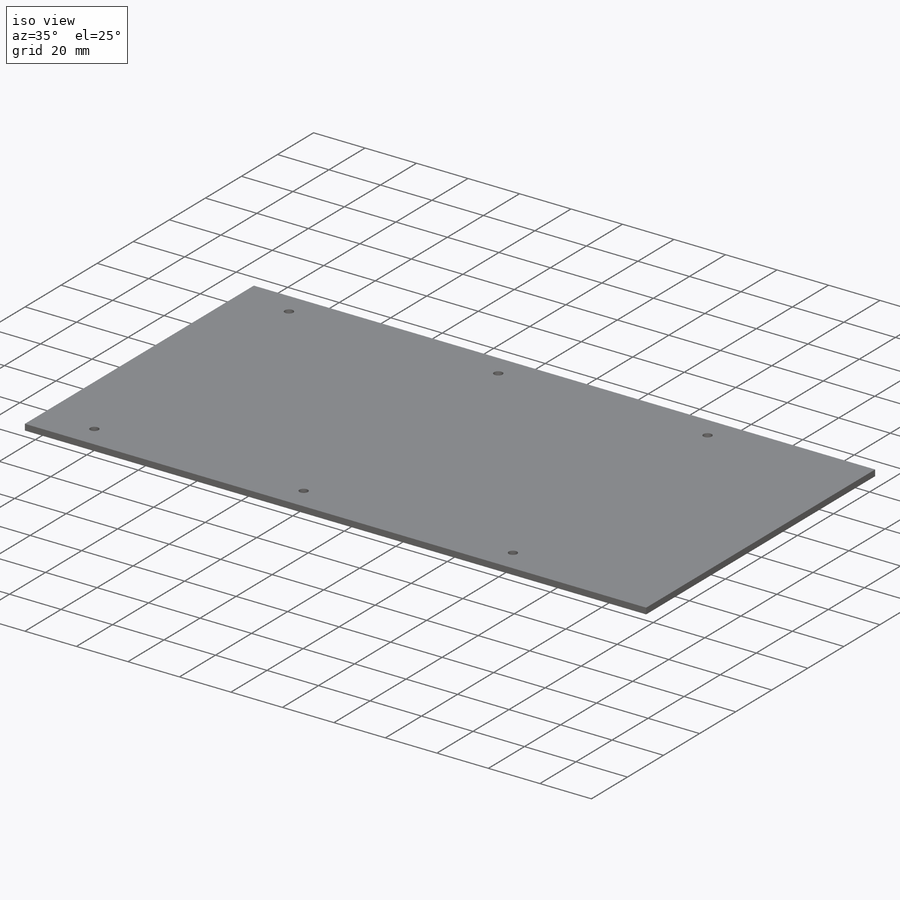
[diagram: iso view]
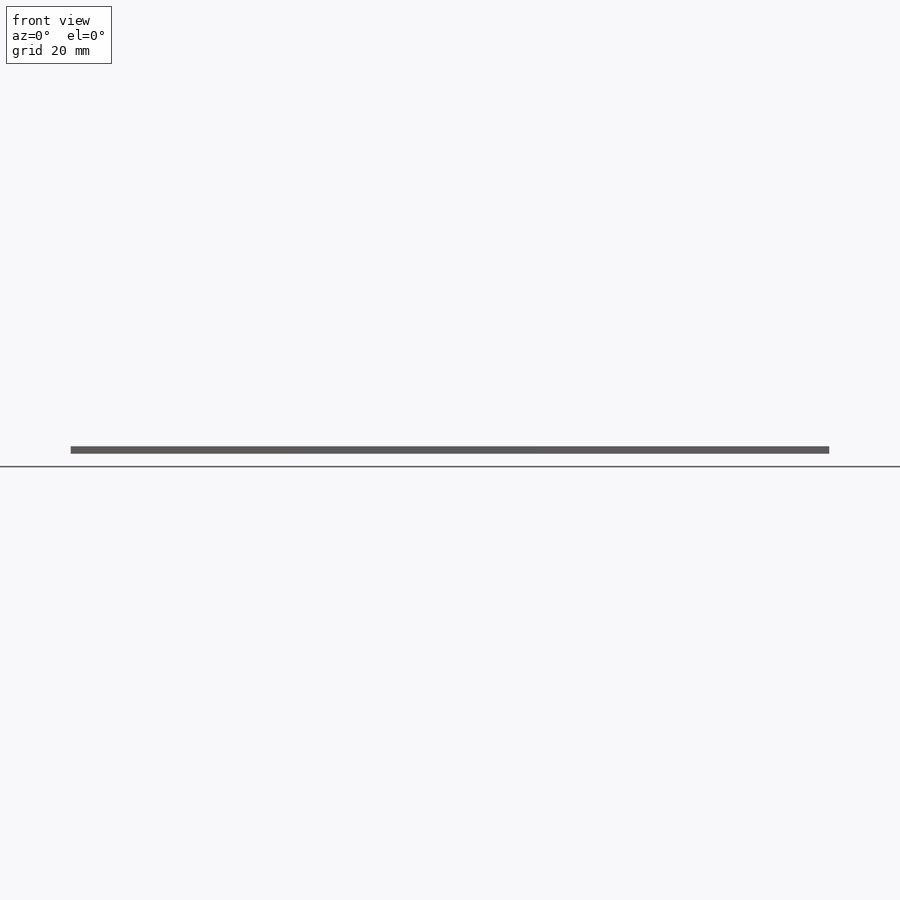
[diagram: front view]
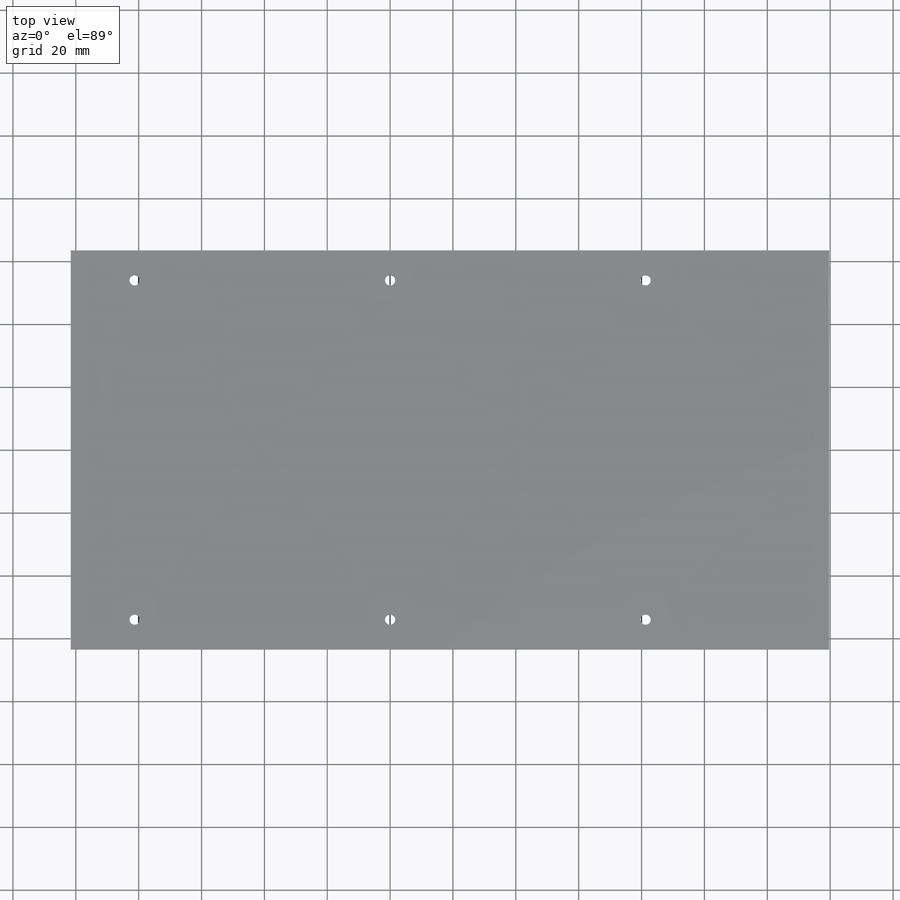
[diagram: top view]
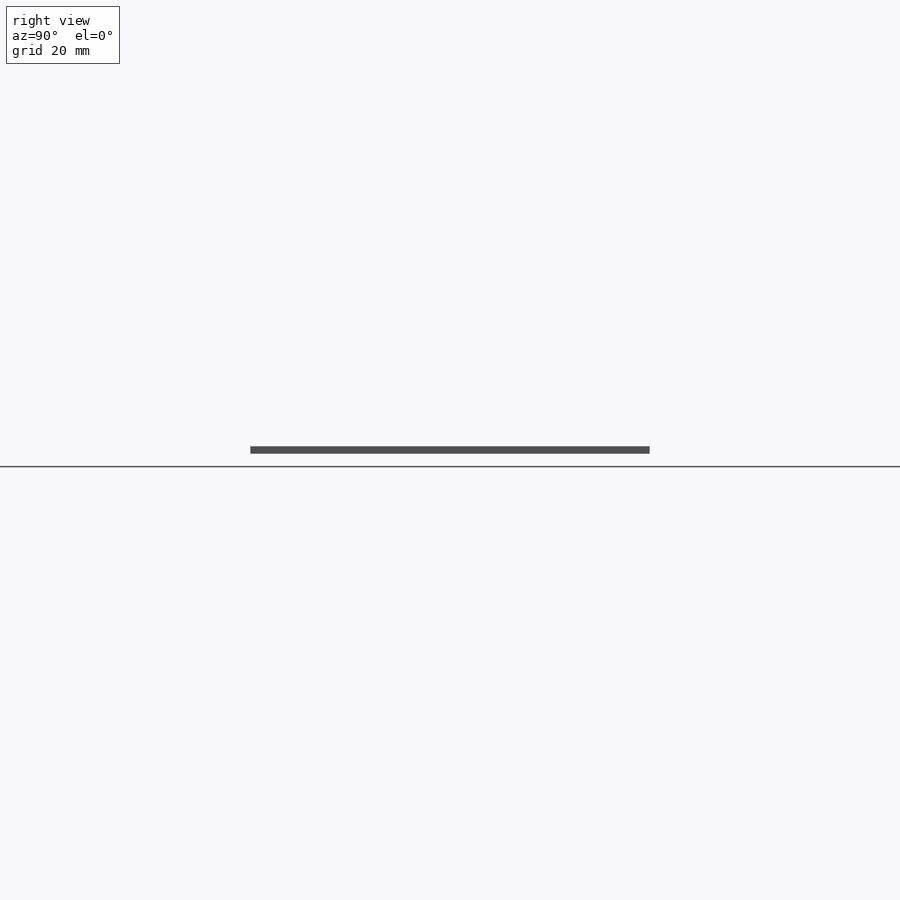
[diagram: right view]
SOLIDWORKS PART (.sldprt)
format: sldprt  version: not decoded by parser v0  size: 153,600 bytes
history: native  units: mm
features: sketch x4, extrude x2, material x1, hole x1 (+11 scaffold rows collapsed)
feature tree (19):
  scaffold x11  (default folders/planes/origin — collapsed)
  material  "Material <not specified>"
  sketch  "Sketch1"  dims[D1=203.2mm D2=127.0mm D3=63.5mm D4=101.6mm]
  extrude  "Extrude1"  Depth=2.3622mm
  hole  "#4 Clearance Hole1"  Diameter=3.2639mm Depth=6.35mm
  sketch  "3DSketch1"  dims[D1=9.525mm D2=9.525mm D3=20.32mm D4=20.32mm D5=101.6mm D6=107.95mm]
  sketch  "Sketch2"  dims[hole-wizard template sketch: 47 standard entries collapsed; hole parameters kept: c15.Hole Depth=6.35mm c15.D3=~14.816244mm c15.Drill Angle=118.0deg]
  sketch  "Sketch3"  dims[D1=38.1mm]
  extrude  "Extrude2"  Depth=2.3622mm
decode coverage: 7 of 7 modeling features carry decoded parameters
note: ~ marks probable driven/reference dimensions
note: suppression state not decoded; provenance and decode notes live in map.json
